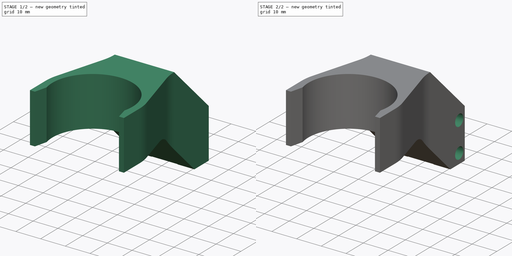
[diagram: build sequence overview — one tinted view per stage of 2, left to right]
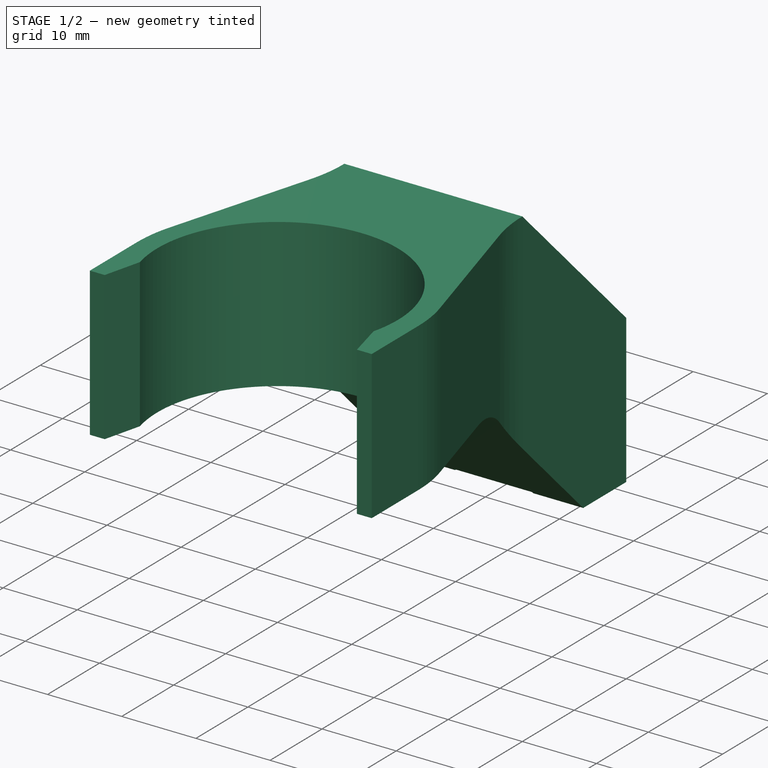
[diagram: stage 1 of 2 — iso view after this stage's code; geometry added in this stage tinted green]
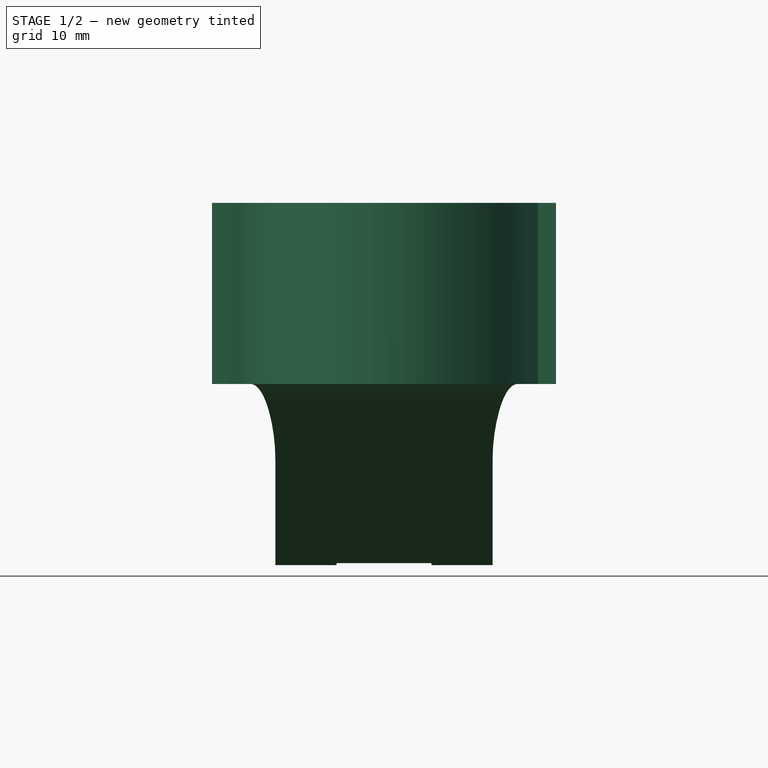
[diagram: stage 1 of 2 — front view after this stage's code; geometry added in this stage tinted green]
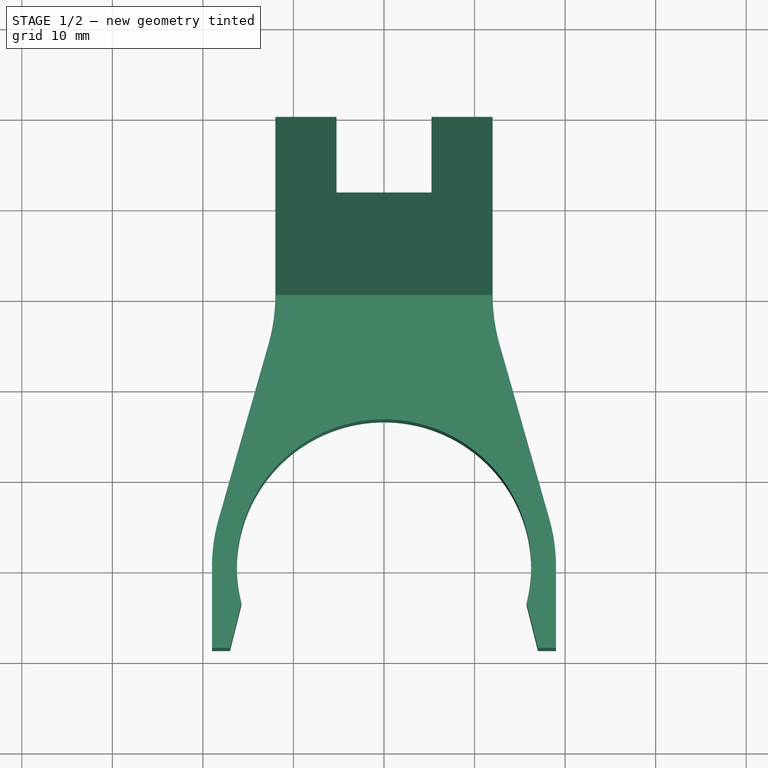
[diagram: stage 1 of 2 — top view after this stage's code; geometry added in this stage tinted green]
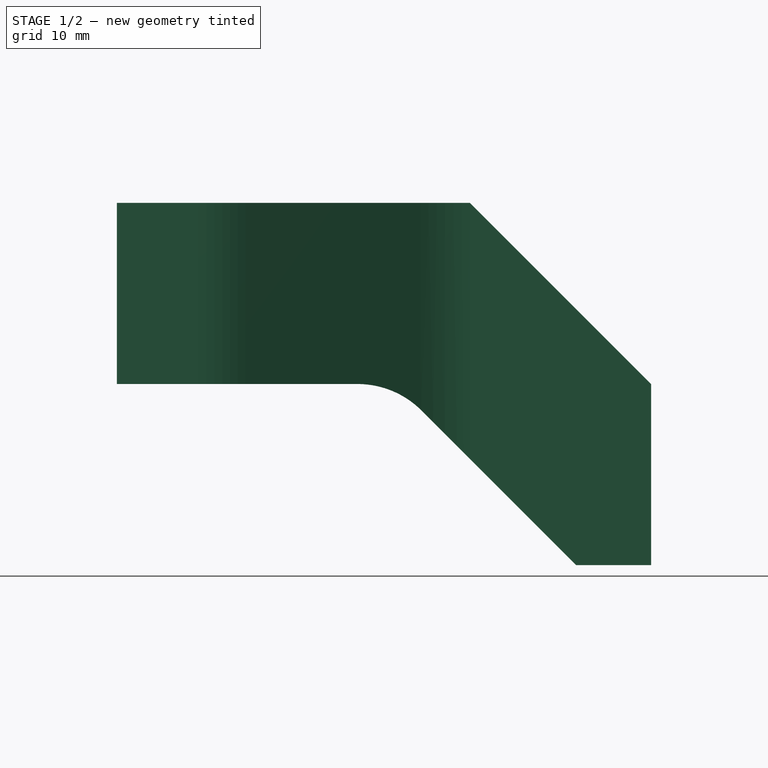
[diagram: stage 1 of 2 — right view after this stage's code; geometry added in this stage tinted green]
FCSTD DOCUMENT  (FreeCAD 0.19R24276 (Git))
Label: heatgun_arm
License: All rights reserved
LicenseURL: http://en.wikipedia.org/wiki/All_rights_reserved
objects: Sketcher::SketchObject×3, PartDesign::Pad×1, PartDesign::Pocket×1, PartDesign::Hole×1, PartDesign::Mirrored×1, PartDesign::Body×1
note: 11 computed .brp shape members not serialized (recipe doc carries the construction recipe); baked Part::Feature solids carry a one-line shape summary decoded from their .brp

FEATURE [Sketcher::SketchObject] Sketch
  FullyConstrained = true
  MapMode = 5
  Support = -> [XY_Plane]
  sketch-geometry (28):
    g0: LineSegment StartX=-12 StartY=0 StartZ=0 EndX=-5.25 EndY=0 EndZ=0
    g1: LineSegment StartX=5.25 StartY=0 StartZ=0 EndX=12 EndY=0 EndZ=0
    g2: LineSegment StartX=-5.25 StartY=0 StartZ=0 EndX=-5.25 EndY=-8.5 EndZ=0
    g3: LineSegment StartX=-5.25 StartY=-8.5 StartZ=0 EndX=5.25 EndY=-8.5 EndZ=0
    g4: LineSegment StartX=5.25 StartY=-8.5 StartZ=0 EndX=5.25 EndY=0 EndZ=0
    g5: LineSegment StartX=-5.25 StartY=-8.5 StartZ=0 EndX=0 EndY=0 EndZ=0
    g6: LineSegment StartX=0 StartY=0 StartZ=0 EndX=5.25 EndY=-8.5 EndZ=0
    g7: LineSegment StartX=-12 StartY=0 StartZ=0 EndX=-12 EndY=-20 EndZ=0
    g8: LineSegment StartX=-12.7667 StartY=-25.4845 StartZ=0 EndX=-18.2717 EndY=-44.7898 EndZ=0
    g9: LineSegment StartX=12 StartY=0 StartZ=0 EndX=12 EndY=-20 EndZ=0
    g10: LineSegment StartX=12.7667 StartY=-25.4845 StartZ=0 EndX=18.2717 EndY=-44.7898 EndZ=0
    g11: ArcOfCircle CenterX=-32 CenterY=-20 CenterZ=0 NormalX=0 NormalY=0 NormalZ=1 AngleXU=0 Radius=20 StartAngle=6.0054 EndAngle=6.28319
    g12: ArcOfCircle CenterX=32 CenterY=-20 CenterZ=0 NormalX=0 NormalY=0 NormalZ=1 AngleXU=0 Radius=20 StartAngle=3.14159 EndAngle=3.41937
    g13: LineSegment StartX=-12.7667 StartY=-25.4845 StartZ=0 EndX=0 EndY=-25.4845 EndZ=0
    g14: LineSegment StartX=12.7667 StartY=-25.4845 StartZ=0 EndX=0 EndY=-25.4845 EndZ=0
    g15: Circle CenterX=0 CenterY=-50 CenterZ=0 NormalX=0 NormalY=0 NormalZ=1 AngleXU=0 Radius=16
    g16: LineSegment StartX=-19 StartY=-50 StartZ=0 EndX=-19 EndY=-59 EndZ=0
    g17: LineSegment StartX=19 StartY=-50 StartZ=0 EndX=19 EndY=-59 EndZ=0
    g18: ArcOfCircle CenterX=0 CenterY=-50 CenterZ=0 NormalX=0 NormalY=0 NormalZ=1 AngleXU=0 Radius=16.25 StartAngle=6.03448 EndAngle=9.67349
    g19: LineSegment StartX=-17 StartY=-59 StartZ=0 EndX=-15.75 EndY=-54 EndZ=0
    g20: LineSegment StartX=19 StartY=-59 StartZ=0 EndX=17 EndY=-59 EndZ=0
    g21: LineSegment StartX=15.75 StartY=-54 StartZ=0 EndX=17 EndY=-59 EndZ=0
    g22: LineSegment StartX=-17 StartY=-59 StartZ=0 EndX=0 EndY=-59 EndZ=0
    g23: LineSegment StartX=17 StartY=-59 StartZ=0 EndX=0 EndY=-59 EndZ=0
    g24: ArcOfCircle CenterX=0 CenterY=-50 CenterZ=0 NormalX=0 NormalY=0 NormalZ=1 AngleXU=0 Radius=19 StartAngle=0 EndAngle=0.277781
    g25: ArcOfCircle CenterX=0 CenterY=-50 CenterZ=0 NormalX=0 NormalY=0 NormalZ=1 AngleXU=0 Radius=19 StartAngle=2.86381 EndAngle=3.14159
    g26: LineSegment StartX=-15.75 StartY=-54 StartZ=0 EndX=15.75 EndY=-54 EndZ=0
    g27: LineSegment StartX=-19 StartY=-59 StartZ=0 EndX=-17 EndY=-59 EndZ=0
  constraints (73):
    c: PointOnObject(g0,g-1)
    c: PointOnObject(g0,g-1)
    c: PointOnObject(g1,g-1)
    c: PointOnObject(g1,g-1)
    c: Coincident(g0,g2)
    c: Vertical(g2)
    c: Coincident(g2,g3)
    c: Horizontal(g3)
    c: Coincident(g3,g4)
    c: Coincident(g4,g1)
    c: Vertical(g4)
    c: DistanceX(g0,g1) = 24
    c: Equal(g1,g0)
    c: Coincident(g2,g5)
    c: Coincident(g5,g-1)
    c: Coincident(g5,g6)
    c: Coincident(g6,g3)
    c: Equal(g6,g5)
    c: DistanceY(g2,g2) = 8.5
    c: DistanceX(g3,g3) = 10.5
    c: Coincident(g0,g7)
    c: Vertical(g7)
    c: Coincident(g1,g9)
    c: Vertical(g9)
    c: Tangent(g8,g11) = 1.5708
    c: Tangent(g7,g11) = 1.5708
    c: Tangent(g9,g12) = -1.5708
    c: Tangent(g10,g12) = -1.5708
    c: Equal(g7,g9)
    c: Equal(g12,g11)
    c: Radius(g11) = 20
    c: Coincident(g13,g8)
    c: PointOnObject(g13,g-2)
    c: Horizontal(g13)
    c: Coincident(g14,g10)
    c: Coincident(g14,g13)
    c: Horizontal(g14)
    c: PointOnObject(g15,g-2)
    c: DistanceY(g15,g-1) = 50
    c: Diameter(g15) = 32
    c: Vertical(g16)
    c: Vertical(g17)
    c: Coincident(g18,g15)
    c: Coincident(g19,g18)
    c: Coincident(g20,g17)
    c: Horizontal(g20)
    c: Coincident(g21,g18)
    c: Coincident(g21,g20)
    c: PointOnObject(g22,g-2)
    c: Coincident(g23,g20)
    c: Coincident(g23,g22)
    c: Horizontal(g23)
    c: Horizontal(g22)
    c: Equal(g22,g23)
    c: Tangent(g17,g24) = 1.5708
    c: Tangent(g10,g24) = 1.5708
    c: Tangent(g16,g25) = -1.5708
    c: Tangent(g8,g25) = -1.5708
    c: Diameter(g18) = 32.5
    c: Coincident(g26,g18)
    c: Coincident(g26,g18)
    c: Horizontal(g26)
    c: DistanceY(g18,g18) = 4
    c: Coincident(g24,g18)
    c: Coincident(g27,g16)
    c: Coincident(g27,g19)
    c: Horizontal(g27)
    c: Coincident(g25,g18)
    c: Coincident(g22,g19)
    c: DistanceX(g19,g20) = 34
    c: DistanceX(g16,g17) = 38
    c: DistanceY(g7,g7) = 20
    c: DistanceY(g20,g18) = 5
FEATURE [PartDesign::Pad] Pad
  Direction = (1,1,1)
  Length = 40
  Length2 = 100
  Profile = -> Sketch
  Type = 0
FEATURE [Sketcher::SketchObject] Sketch001
  AttachmentOffset = pos=(0,0,100) rot=(0,0,1;0rad)
  FullyConstrained = true
  MapMode = 5
  Placement = pos=(100,-2.22e-14,2.22e-14) rot=(0.57735,0.57735,0.57735;2.0944rad)
  Support = -> [YZ_Plane]
  sketch-geometry (10):
    g0: LineSegment StartX=0 StartY=0 StartZ=0 EndX=0 EndY=20 EndZ=0
    g1: LineSegment StartX=0 StartY=20 StartZ=0 EndX=-20 EndY=40 EndZ=0
    g2: LineSegment StartX=-20 StartY=40 StartZ=0 EndX=-59 EndY=40 EndZ=0
    g3: LineSegment StartX=-59 StartY=40 StartZ=0 EndX=-59 EndY=20 EndZ=0
    g4: LineSegment StartX=-8.28427 StartY=0 StartZ=0 EndX=0 EndY=0 EndZ=0
    g5: LineSegment StartX=-59 StartY=20 StartZ=0 EndX=-32.4264 EndY=20 EndZ=0
    g6: LineSegment StartX=-25.3553 StartY=17.0711 StartZ=0 EndX=-8.28427 EndY=0 EndZ=0
    g7: ArcOfCircle CenterX=-32.4264 CenterY=10 CenterZ=0 NormalX=0 NormalY=0 NormalZ=1 AngleXU=0 Radius=10 StartAngle=0.785398 EndAngle=1.5708
    g8: LineSegment StartX=-25.3553 StartY=17.0711 StartZ=0 EndX=-11.2132 EndY=31.2132 EndZ=0
    g9: Circle CenterX=0 CenterY=0 CenterZ=0 NormalX=0 NormalY=0 NormalZ=1 AngleXU=0 Radius=100
  constraints (27):
    c: Coincident(g-1,g0)
    c: PointOnObject(g0,g-2)
    c: Coincident(g0,g1)
    c: Coincident(g1,g2)
    c: Horizontal(g2)
    c: Coincident(g2,g3)
    c: Vertical(g3)
    c: PointOnObject(g4,g-1)
    c: Coincident(g4,g0)
    c: Coincident(g5,g3)
    c: Horizontal(g5)
    c: Coincident(g6,g4)
    c: DistanceY(g0,g0) = 20
    c: DistanceY(g3,g3) = 20
    c: Tangent(g6,g7) = 1.5708
    c: Tangent(g5,g7) = 1.5708
    c: Parallel(g6,g1)
    c: Angle(g1,g-2) = 2.35619
    c: DistanceY(g0,g2) = 40
    c: DistanceX(g2,g0) = 59
    c: Radius(g7) = 10
    c: Coincident(g8,g6)
    c: PointOnObject(g8,g1)
    c: Perpendicular(g1,g8)
    c: Equal(g8,g3)
    c: Coincident(g9,g0)
    c: Diameter(g9) = 200
FEATURE [PartDesign::Pocket] Pocket
  BaseFeature = -> Pad
  Length = 5
  Length2 = 100
  Profile = -> Sketch001
  Type = 1
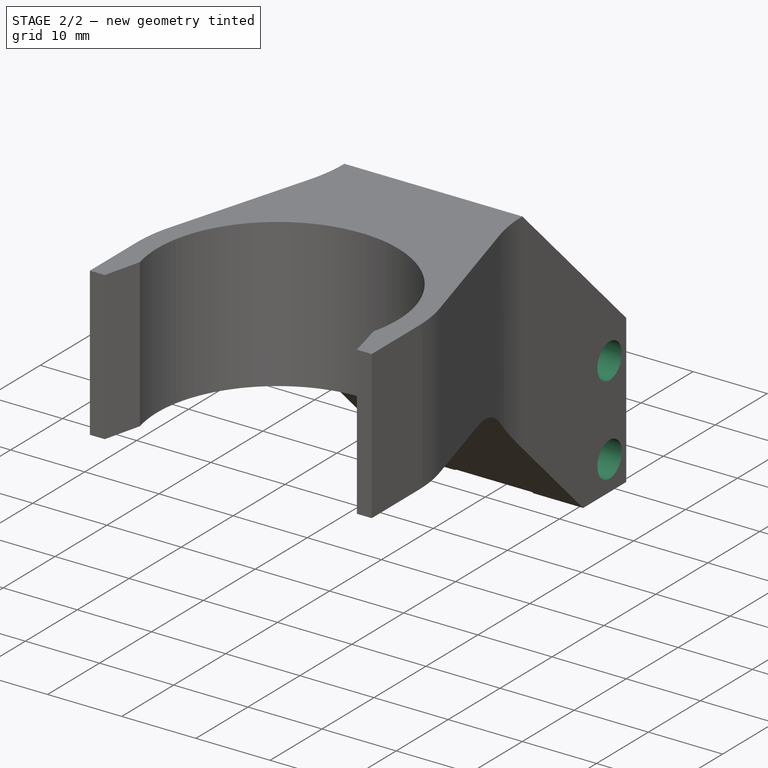
[diagram: stage 2 of 2 — iso view after this stage's code; geometry added in this stage tinted green]
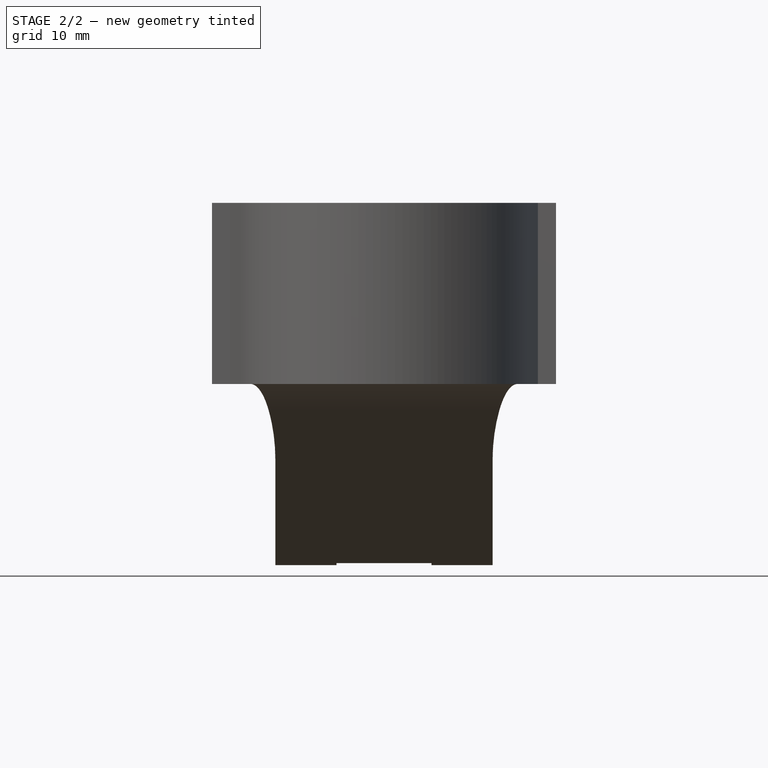
[diagram: stage 2 of 2 — front view after this stage's code; geometry added in this stage tinted green]
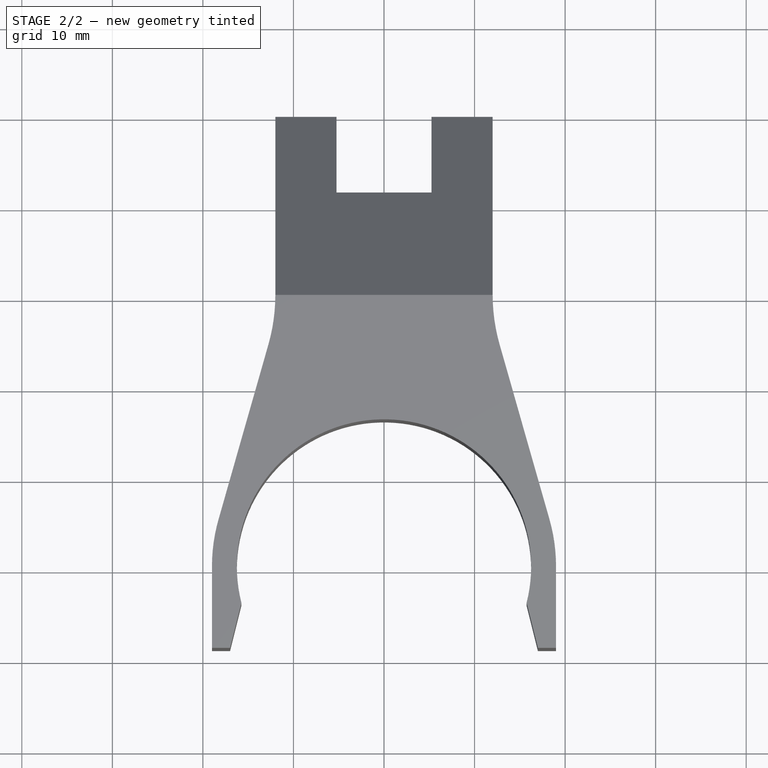
[diagram: stage 2 of 2 — top view after this stage's code; geometry added in this stage tinted green]
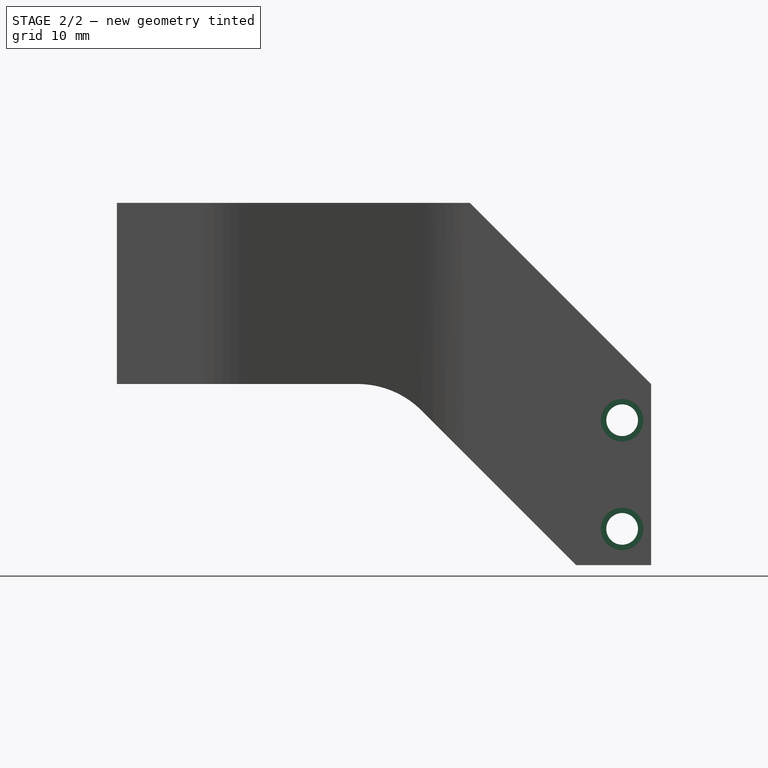
[diagram: stage 2 of 2 — right view after this stage's code; geometry added in this stage tinted green]
FEATURE [Sketcher::SketchObject] Sketch002
  FullyConstrained = true
  MapMode = 5
  Placement = pos=(12,0,0) rot=(0.57735,0.57735,0.57735;2.0944rad)
  Support = -> [Pocket]
  sketch-geometry (3):
    g0: Circle CenterX=-3.2 CenterY=4 CenterZ=0 NormalX=0 NormalY=0 NormalZ=1 AngleXU=0 Radius=2
    g1: Circle CenterX=-3.2 CenterY=16 CenterZ=0 NormalX=0 NormalY=0 NormalZ=1 AngleXU=0 Radius=2
    g2: LineSegment StartX=-3.2 StartY=4 StartZ=0 EndX=-3.2 EndY=16 EndZ=0
  constraints (8):
    c: Coincident(g2,g0)
    c: Coincident(g2,g1)
    c: Vertical(g2)
    c: DistanceX(g0,g-1) = 3.2
    c: DistanceY(g2,g2) = 12
    c: DistanceY(g-1,g0) = 4
    c: Equal(g0,g1)
    c: Diameter(g1) = 4
FEATURE [PartDesign::Hole] Hole
  BaseFeature = -> Pocket
  Depth = 15
  DepthType = 0
  Diameter = 3.5
  DrillForDepth = false
  DrillPoint = 1
  DrillPointAngle = 118
  HoleCutCountersinkAngle = 90
  HoleCutCustomValues = false
  HoleCutDepth = 5
  HoleCutDiameter = 4.7
  HoleCutType = 1
  ModelActualThread = false
  Profile = -> Sketch002
  Tapered = false
  TaperedAngle = 90
  ThreadAngle = 0
  ThreadClass = 0
  ThreadCutOffInner = 0
  ThreadCutOffOuter = 0
  ThreadDirection = 0
  ThreadFit = 0
  ThreadPitch = 0
  ThreadSize = 0
  ThreadType = 0
  Threaded = false
FEATURE [PartDesign::Mirrored] Mirrored
  BaseFeature = -> Hole
  MirrorPlane = -> YZ_Plane
  Originals = -> [Hole]
FEATURE [PartDesign::Body] Body
  Group = -> [Sketch,Pad,Sketch001,Pocket,Sketch002,Hole,Mirrored]
  Origin = -> Origin
  Tip = -> Mirrored
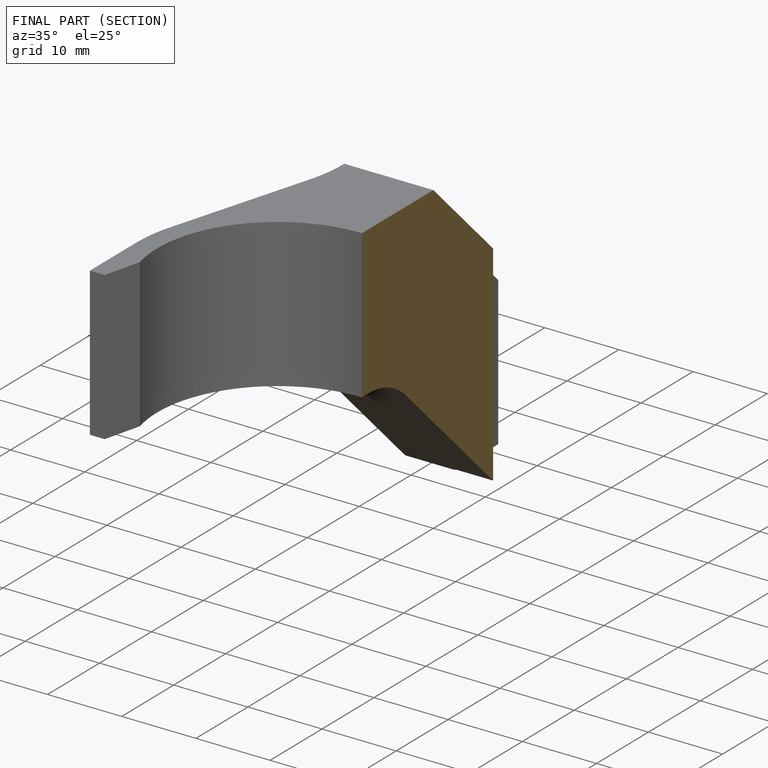
[diagram: finished part — half-section view (interior)]
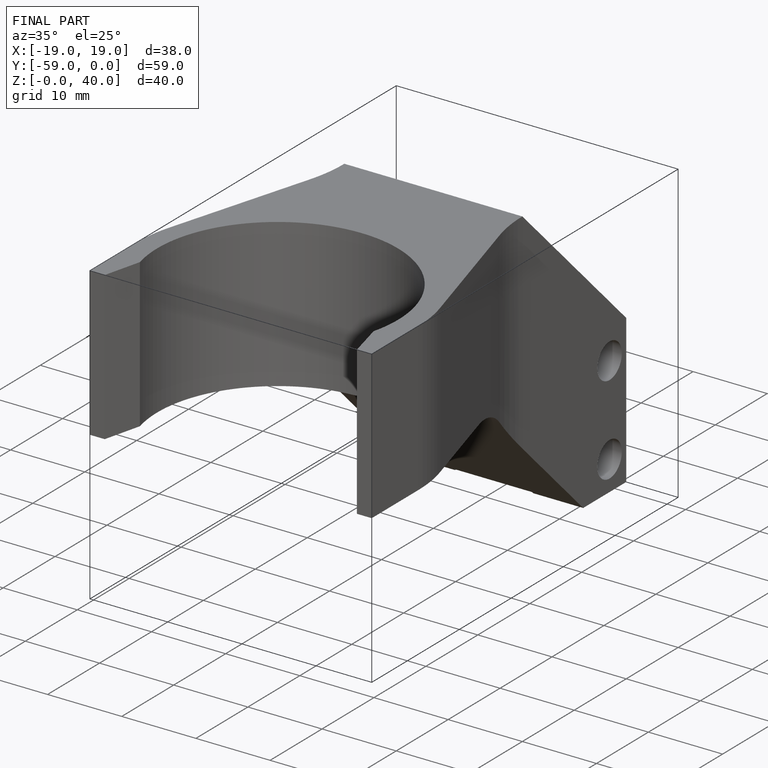
[diagram: finished part — iso view with bounding-box wireframe]
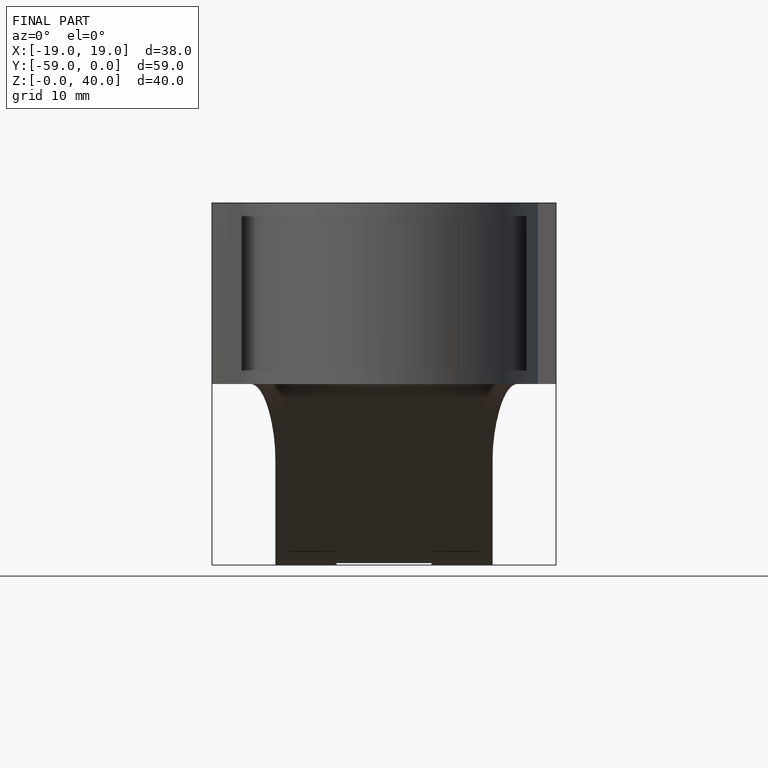
[diagram: finished part — front view with bounding-box wireframe]
